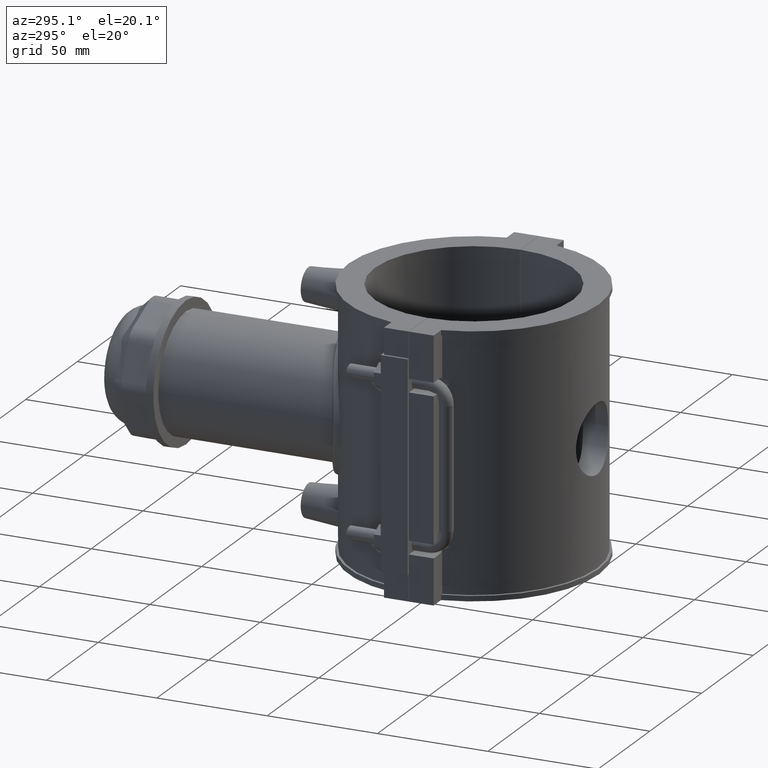
[diagram: clean part render]
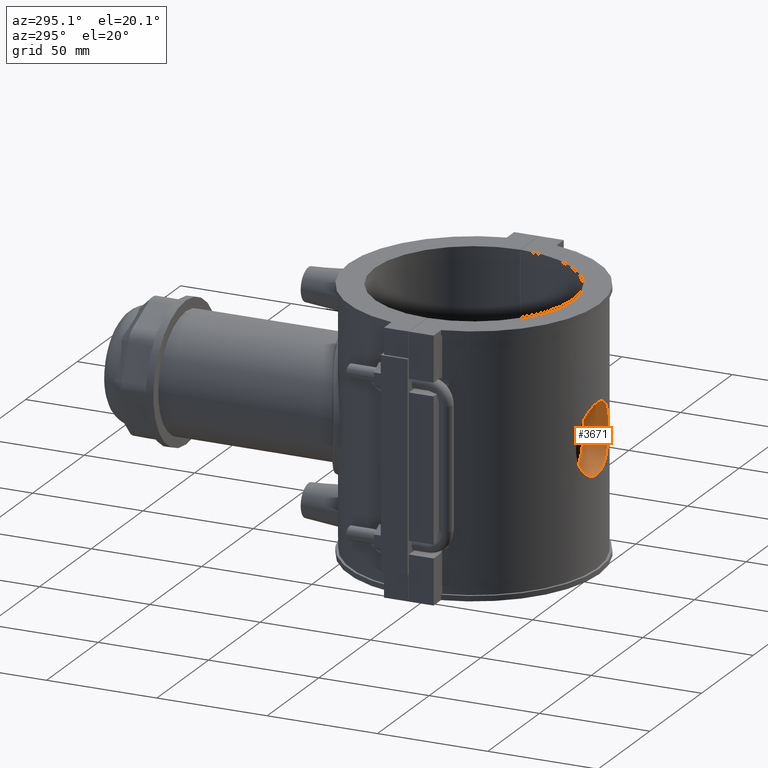
[diagram: same view with one face highlighted and labeled with its STEP entity id]
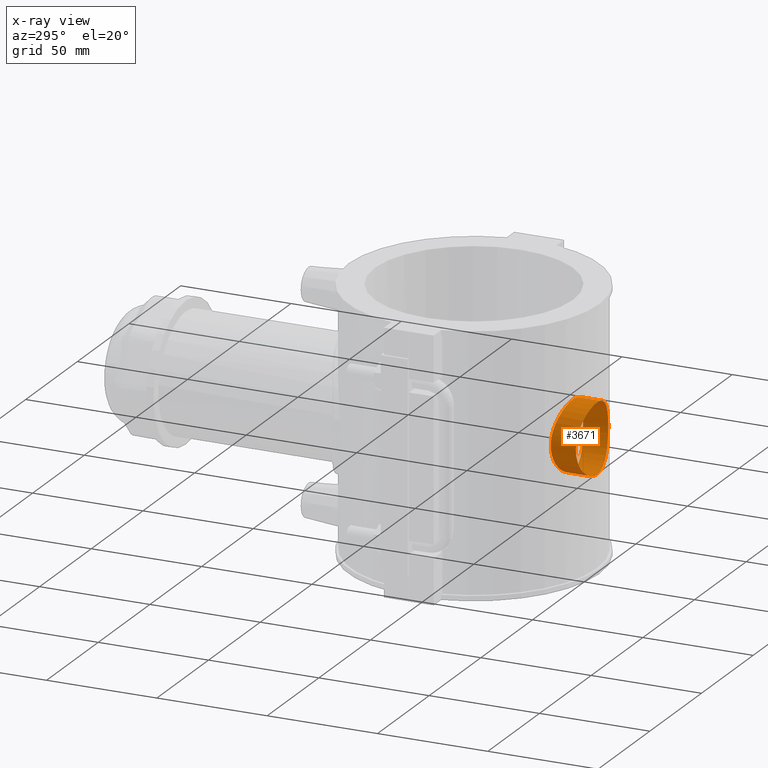
[diagram: x-ray of the same camera — body ghosted, the highlighted face saturated]
A machine part, auxiliary view. The second image highlights one B-rep face of the part: STEP entity #3671.
The next image is the same camera in x-ray: the body ghosted, the highlighted face saturated — about 0% of this face is hidden behind the body in this view.
In plain terms, the highlighted cylindrical surface (bore or boss wall) has radius 15.68 mm, axis along (0, -1, 0).
Its self-contained STEP definition (entity closure, byte-faithful):
#916=FACE_BOUND('',#1261,.T.);
#1026=FACE_OUTER_BOUND('',#1260,.T.);
#1260=EDGE_LOOP('',(#2760));
#1261=EDGE_LOOP('',(#2761));
#1508=B_SPLINE_CURVE_WITH_KNOTS('',3,(#6148,#6149,#6150,#6151,#6152,#6153,
#6154,#6155,#6156,#6157,#6158,#6159,#6160,#6161,#6162,#6163,#6164,#6165,
#6166,#6167,#6168,#6169,#6170,#6171,#6172,#6173,#6174,#6175,#6176,#6177,
#6178,#6179,#6180,#6181,#6182,#6183,#6184,#6185,#6186,#6187,#6188,#6189,
#6190,#6191,#6192,#6193,#6194,#6195,#6196,#6197,#6198,#6199,#6200,#6201,
#6202,#6203,#6204,#6205,#6206,#6207,#6208,#6209,#6210,#6211,#6212,#6213),
 .UNSPECIFIED.,.T.,.F.,(4,2,2,2,2,2,2,2,2,2,2,2,2,2,2,2,2,2,2,2,2,2,2,2,
2,2,2,2,2,2,2,2,4),(0.,0.29708920166332,0.59417840332664,0.891267604989959,
1.18835680665328,1.48537862297047,1.78240043928765,2.07942225560484,2.37644407192203,
2.67346588823921,2.9704877045564,3.26750952087359,3.56453133719078,3.8616205388541,
4.15870974051742,4.45579894218074,4.75288814384406,5.04997734550737,5.34706654717069,
5.64415574883401,5.94124495049733,6.23826676681452,6.53528858313171,6.8323103994489,
7.12933221576608,7.42635403208327,7.72337584840046,8.02039766471764,8.31741948103483,
8.61450868269815,8.91159788436147,9.20868708602479,9.50577628768811),
 .UNSPECIFIED.);
#1509=B_SPLINE_CURVE_WITH_KNOTS('',3,(#6215,#6216,#6217,#6218,#6219,#6220,
#6221,#6222,#6223,#6224,#6225,#6226,#6227,#6228,#6229,#6230,#6231,#6232,
#6233,#6234,#6235,#6236,#6237,#6238,#6239,#6240,#6241,#6242,#6243,#6244,
#6245,#6246,#6247,#6248,#6249,#6250,#6251,#6252,#6253,#6254,#6255,#6256,
#6257,#6258,#6259,#6260,#6261,#6262,#6263,#6264,#6265,#6266,#6267,#6268,
#6269,#6270,#6271,#6272),.UNSPECIFIED.,.T.,.F.,(4,2,2,2,2,2,2,2,2,2,2,2,
2,2,2,2,2,2,2,2,2,2,2,2,2,2,2,2,4),(0.,0.298130774437552,0.596261548875103,
1.19252309775021,1.49048702667013,1.78845095559006,2.08641488450998,2.38437881342991,
2.68234274234983,2.98030667126975,3.27827060018968,3.5762345291096,4.17249607798471,
4.47062685242226,4.76875762685981,5.06688840129736,5.36501917573491,5.96128072461002,
6.25924465352994,6.55720858244987,6.85517251136979,7.15313644028972,7.45110036920964,
7.74906429812957,8.04702822704949,8.34499215596941,8.94125370484452,9.23938447928207,
9.53751525371962),.UNSPECIFIED.);
#1665=VERTEX_POINT('',#6147);
#1666=VERTEX_POINT('',#6214);
#2076=EDGE_CURVE('',#1665,#1665,#1508,.T.);
#2077=EDGE_CURVE('',#1666,#1666,#1509,.T.);
#2760=ORIENTED_EDGE('',*,*,#2076,.F.);
#2761=ORIENTED_EDGE('',*,*,#2077,.F.);
#3562=CYLINDRICAL_SURFACE('',#3920,15.68);
#3671=ADVANCED_FACE('',(#1026,#916),#3562,.F.);
#3920=AXIS2_PLACEMENT_3D('',#6146,#4404,#4405);
#4404=DIRECTION('center_axis',(0.,-1.,0.));
#4405=DIRECTION('ref_axis',(1.,0.,0.));
#6146=CARTESIAN_POINT('Origin',(0.,0.,0.));
#6147=CARTESIAN_POINT('',(15.68,-53.551634895678,-2.77555756156289E-16));
#6148=CARTESIAN_POINT('Ctrl Pts',(15.68,-53.551634895678,-2.77555756156289E-16));
#6149=CARTESIAN_POINT('Ctrl Pts',(15.68,-53.551634895678,-0.990297338877733));
#6150=CARTESIAN_POINT('Ctrl Pts',(15.5846725236992,-53.5798577984178,-2.01258839316844));
#6151=CARTESIAN_POINT('Ctrl Pts',(15.1851883883389,-53.6944432221613,-4.04259611713587));
#6152=CARTESIAN_POINT('Ctrl Pts',(14.8811374861866,-53.7807031669434,-5.05033938589512));
#6153=CARTESIAN_POINT('Ctrl Pts',(14.0794434110147,-53.9961252986264,-6.98021979049833));
#6154=CARTESIAN_POINT('Ctrl Pts',(13.5811636828078,-54.125236596358,-7.90399606845588));
#6155=CARTESIAN_POINT('Ctrl Pts',(12.4317835249344,-54.4007353069943,-9.61103112442105));
#6156=CARTESIAN_POINT('Ctrl Pts',(11.7805935513097,-54.5468407397785,-10.3942751067004));
#6157=CARTESIAN_POINT('Ctrl Pts',(10.3944323280799,-54.8278740131027,-11.7804363299302));
#6158=CARTESIAN_POINT('Ctrl Pts',(9.61126207996417,-54.9728166452418,-12.4316080844248));
#6159=CARTESIAN_POINT('Ctrl Pts',(7.90418302518043,-55.2441021230157,-13.5810577299177));
#6160=CARTESIAN_POINT('Ctrl Pts',(6.98028905731638,-55.3701891682183,-14.0794180149934));
#6161=CARTESIAN_POINT('Ctrl Pts',(5.05017642792394,-55.5794746447399,-14.8812018024145));
#6162=CARTESIAN_POINT('Ctrl Pts',(4.04232221245573,-55.6626709556743,-15.185262155919));
#6163=CARTESIAN_POINT('Ctrl Pts',(2.01228241325287,-55.7729685984035,-15.5847128656235));
#6164=CARTESIAN_POINT('Ctrl Pts',(0.990072721057291,-55.8,-15.68));
#6165=CARTESIAN_POINT('Ctrl Pts',(-0.99007272105729,-55.8,-15.68));
#6166=CARTESIAN_POINT('Ctrl Pts',(-2.01228241325287,-55.7729685984035,-15.5847128656235));
#6167=CARTESIAN_POINT('Ctrl Pts',(-4.04232221245573,-55.6626709556743,-15.185262155919));
#6168=CARTESIAN_POINT('Ctrl Pts',(-5.05017642792394,-55.5794746447399,-14.8812018024145));
#6169=CARTESIAN_POINT('Ctrl Pts',(-6.98028905731637,-55.3701891682183,-14.0794180149934));
#6170=CARTESIAN_POINT('Ctrl Pts',(-7.90418302518042,-55.2441021230157,-13.5810577299177));
#6171=CARTESIAN_POINT('Ctrl Pts',(-9.61126207996417,-54.9728166452418,-12.4316080844248));
#6172=CARTESIAN_POINT('Ctrl Pts',(-10.3944323280799,-54.8278740131027,-11.7804363299302));
#6173=CARTESIAN_POINT('Ctrl Pts',(-11.7805935513097,-54.5468407397785,-10.3942751067004));
#6174=CARTESIAN_POINT('Ctrl Pts',(-12.4317835249344,-54.4007353069943,-9.61103112442105));
#6175=CARTESIAN_POINT('Ctrl Pts',(-13.5811636828078,-54.125236596358,-7.90399606845588));
#6176=CARTESIAN_POINT('Ctrl Pts',(-14.0794434110147,-53.9961252986264,-6.98021979049833));
#6177=CARTESIAN_POINT('Ctrl Pts',(-14.8811374861866,-53.7807031669434,-5.05033938589512));
#6178=CARTESIAN_POINT('Ctrl Pts',(-15.1851883883389,-53.6944432221613,-4.04259611713587));
#6179=CARTESIAN_POINT('Ctrl Pts',(-15.5846725236992,-53.5798577984178,-2.01258839316843));
#6180=CARTESIAN_POINT('Ctrl Pts',(-15.68,-53.551634895678,-0.990297338877732));
#6181=CARTESIAN_POINT('Ctrl Pts',(-15.68,-53.551634895678,0.990297338877732));
#6182=CARTESIAN_POINT('Ctrl Pts',(-15.5846725236992,-53.5798577984178,2.01258839316844));
#6183=CARTESIAN_POINT('Ctrl Pts',(-15.1851883883389,-53.6944432221613,4.04259611713587));
#6184=CARTESIAN_POINT('Ctrl Pts',(-14.8811374861866,-53.7807031669434,5.05033938589512));
#6185=CARTESIAN_POINT('Ctrl Pts',(-14.0794434110147,-53.9961252986264,6.98021979049833));
#6186=CARTESIAN_POINT('Ctrl Pts',(-13.5811636828078,-54.125236596358,7.90399606845588));
#6187=CARTESIAN_POINT('Ctrl Pts',(-12.4317835249344,-54.4007353069943,9.61103112442105));
#6188=CARTESIAN_POINT('Ctrl Pts',(-11.7805935513097,-54.5468407397785,10.3942751067004));
#6189=CARTESIAN_POINT('Ctrl Pts',(-10.3944323280799,-54.8278740131027,11.7804363299302));
#6190=CARTESIAN_POINT('Ctrl Pts',(-9.61126207996417,-54.9728166452418,12.4316080844248));
#6191=CARTESIAN_POINT('Ctrl Pts',(-7.90418302518043,-55.2441021230157,13.5810577299177));
#6192=CARTESIAN_POINT('Ctrl Pts',(-6.98028905731638,-55.3701891682183,14.0794180149934));
#6193=CARTESIAN_POINT('Ctrl Pts',(-5.05017642792394,-55.5794746447399,14.8812018024145));
#6194=CARTESIAN_POINT('Ctrl Pts',(-4.04232221245574,-55.6626709556743,15.185262155919));
#6195=CARTESIAN_POINT('Ctrl Pts',(-2.01228241325287,-55.7729685984035,15.5847128656235));
#6196=CARTESIAN_POINT('Ctrl Pts',(-0.990072721057294,-55.8,15.68));
#6197=CARTESIAN_POINT('Ctrl Pts',(0.990072721057288,-55.8,15.68));
#6198=CARTESIAN_POINT('Ctrl Pts',(2.01228241325287,-55.7729685984035,15.5847128656235));
#6199=CARTESIAN_POINT('Ctrl Pts',(4.04232221245573,-55.6626709556743,15.185262155919));
#6200=CARTESIAN_POINT('Ctrl Pts',(5.05017642792394,-55.5794746447399,14.8812018024145));
#6201=CARTESIAN_POINT('Ctrl Pts',(6.98028905731637,-55.3701891682183,14.0794180149935));
#6202=CARTESIAN_POINT('Ctrl Pts',(7.90418302518042,-55.2441021230157,13.5810577299177));
#6203=CARTESIAN_POINT('Ctrl Pts',(9.61126207996417,-54.9728166452418,12.4316080844248));
#6204=CARTESIAN_POINT('Ctrl Pts',(10.3944323280799,-54.8278740131027,11.7804363299302));
#6205=CARTESIAN_POINT('Ctrl Pts',(11.7805935513097,-54.5468407397785,10.3942751067004));
#6206=CARTESIAN_POINT('Ctrl Pts',(12.4317835249344,-54.4007353069943,9.61103112442105));
#6207=CARTESIAN_POINT('Ctrl Pts',(13.5811636828078,-54.125236596358,7.90399606845589));
#6208=CARTESIAN_POINT('Ctrl Pts',(14.0794434110147,-53.9961252986264,6.98021979049834));
#6209=CARTESIAN_POINT('Ctrl Pts',(14.8811374861866,-53.7807031669434,5.05033938589513));
#6210=CARTESIAN_POINT('Ctrl Pts',(15.1851883883389,-53.6944432221613,4.04259611713588));
#6211=CARTESIAN_POINT('Ctrl Pts',(15.5846725236992,-53.5798577984178,2.01258839316844));
#6212=CARTESIAN_POINT('Ctrl Pts',(15.68,-53.551634895678,0.990297338877735));
#6213=CARTESIAN_POINT('Ctrl Pts',(15.68,-53.551634895678,0.));
#6214=CARTESIAN_POINT('',(15.68,-42.1798245610387,2.77555756156289E-16));
#6215=CARTESIAN_POINT('Ctrl Pts',(15.68,-42.1798245610387,2.77555756156289E-16));
#6216=CARTESIAN_POINT('Ctrl Pts',(15.68,-42.1798245610387,0.993769248125173));
#6217=CARTESIAN_POINT('Ctrl Pts',(15.5840062611448,-42.2159243813651,2.01849568046661));
#6218=CARTESIAN_POINT('Ctrl Pts',(15.1829951016987,-42.3618009790322,4.05120176988392));
#6219=CARTESIAN_POINT('Ctrl Pts',(14.8780965708993,-42.4714239376622,5.05921591543679));
#6220=CARTESIAN_POINT('Ctrl Pts',(13.6743092749295,-42.8804342755879,7.95234733967828));
#6221=CARTESIAN_POINT('Ctrl Pts',(12.4706643468803,-43.2610623394661,9.70420431112979));
#6222=CARTESIAN_POINT('Ctrl Pts',(10.3962063745887,-43.7884410454044,11.7786622834215));
#6223=CARTESIAN_POINT('Ctrl Pts',(9.61490003473461,-43.9694011229695,12.428665076078));
#6224=CARTESIAN_POINT('Ctrl Pts',(7.91087463584725,-44.307703622236,13.5770424166243));
#6225=CARTESIAN_POINT('Ctrl Pts',(6.98815325823131,-44.4647418327408,14.075503120421));
#6226=CARTESIAN_POINT('Ctrl Pts',(5.05882727978244,-44.7253375478535,14.8782506934927));
#6227=CARTESIAN_POINT('Ctrl Pts',(4.05053588295858,-44.8289074026202,15.183175141873));
#6228=CARTESIAN_POINT('Ctrl Pts',(2.01774280473302,-44.9662817433942,15.5841060797187));
#6229=CARTESIAN_POINT('Ctrl Pts',(0.99321309639975,-45.,15.68));
#6230=CARTESIAN_POINT('Ctrl Pts',(-0.993213096399747,-45.,15.68));
#6231=CARTESIAN_POINT('Ctrl Pts',(-2.01774280473302,-44.9662817433942,15.5841060797187));
#6232=CARTESIAN_POINT('Ctrl Pts',(-4.05053588295858,-44.8289074026202,15.183175141873));
#6233=CARTESIAN_POINT('Ctrl Pts',(-5.05882727978244,-44.7253375478535,14.8782506934927));
#6234=CARTESIAN_POINT('Ctrl Pts',(-6.9881532582313,-44.4647418327408,14.075503120421));
#6235=CARTESIAN_POINT('Ctrl Pts',(-7.91087463584725,-44.307703622236,13.5770424166243));
#6236=CARTESIAN_POINT('Ctrl Pts',(-9.61490003473461,-43.9694011229695,12.428665076078));
#6237=CARTESIAN_POINT('Ctrl Pts',(-10.3962063745887,-43.7884410454044,11.7786622834215));
#6238=CARTESIAN_POINT('Ctrl Pts',(-12.4706643468803,-43.2610623394661,9.7042043111298));
#6239=CARTESIAN_POINT('Ctrl Pts',(-13.6743092749295,-42.8804342755878,7.95234733967828));
#6240=CARTESIAN_POINT('Ctrl Pts',(-14.8780965708993,-42.4714239376622,5.05921591543679));
#6241=CARTESIAN_POINT('Ctrl Pts',(-15.1829951016987,-42.3618009790322,4.05120176988392));
#6242=CARTESIAN_POINT('Ctrl Pts',(-15.5840062611448,-42.2159243813651,2.01849568046661));
#6243=CARTESIAN_POINT('Ctrl Pts',(-15.68,-42.1798245610387,0.993769248125173));
#6244=CARTESIAN_POINT('Ctrl Pts',(-15.68,-42.1798245610387,-0.993769248125173));
#6245=CARTESIAN_POINT('Ctrl Pts',(-15.5840062611448,-42.2159243813651,-2.01849568046661));
#6246=CARTESIAN_POINT('Ctrl Pts',(-15.1829951016987,-42.3618009790322,-4.05120176988392));
#6247=CARTESIAN_POINT('Ctrl Pts',(-14.8780965708993,-42.4714239376622,-5.05921591543679));
#6248=CARTESIAN_POINT('Ctrl Pts',(-13.6743092749295,-42.8804342755878,-7.95234733967828));
#6249=CARTESIAN_POINT('Ctrl Pts',(-12.4706643468803,-43.2610623394661,-9.70420431112979));
#6250=CARTESIAN_POINT('Ctrl Pts',(-10.3962063745887,-43.7884410454044,-11.7786622834215));
#6251=CARTESIAN_POINT('Ctrl Pts',(-9.61490003473461,-43.9694011229695,-12.428665076078));
#6252=CARTESIAN_POINT('Ctrl Pts',(-7.91087463584725,-44.307703622236,-13.5770424166243));
#6253=CARTESIAN_POINT('Ctrl Pts',(-6.9881532582313,-44.4647418327408,-14.075503120421));
#6254=CARTESIAN_POINT('Ctrl Pts',(-5.05882727978244,-44.7253375478535,-14.8782506934927));
#6255=CARTESIAN_POINT('Ctrl Pts',(-4.05053588295858,-44.8289074026202,-15.183175141873));
#6256=CARTESIAN_POINT('Ctrl Pts',(-2.01774280473303,-44.9662817433942,-15.5841060797187));
#6257=CARTESIAN_POINT('Ctrl Pts',(-0.993213096399753,-45.,-15.68));
#6258=CARTESIAN_POINT('Ctrl Pts',(0.993213096399747,-45.,-15.68));
#6259=CARTESIAN_POINT('Ctrl Pts',(2.01774280473302,-44.9662817433942,-15.5841060797187));
#6260=CARTESIAN_POINT('Ctrl Pts',(4.05053588295858,-44.8289074026202,-15.183175141873));
#6261=CARTESIAN_POINT('Ctrl Pts',(5.05882727978244,-44.7253375478535,-14.8782506934927));
#6262=CARTESIAN_POINT('Ctrl Pts',(6.9881532582313,-44.4647418327408,-14.075503120421));
#6263=CARTESIAN_POINT('Ctrl Pts',(7.91087463584724,-44.307703622236,-13.5770424166243));
#6264=CARTESIAN_POINT('Ctrl Pts',(9.6149000347346,-43.9694011229695,-12.428665076078));
#6265=CARTESIAN_POINT('Ctrl Pts',(10.3962063745887,-43.7884410454044,-11.7786622834215));
#6266=CARTESIAN_POINT('Ctrl Pts',(12.4706643468803,-43.2610623394661,-9.7042043111298));
#6267=CARTESIAN_POINT('Ctrl Pts',(13.6743092749295,-42.8804342755879,-7.95234733967828));
#6268=CARTESIAN_POINT('Ctrl Pts',(14.8780965708993,-42.4714239376622,-5.0592159154368));
#6269=CARTESIAN_POINT('Ctrl Pts',(15.1829951016986,-42.3618009790322,-4.05120176988393));
#6270=CARTESIAN_POINT('Ctrl Pts',(15.5840062611448,-42.2159243813651,-2.01849568046661));
#6271=CARTESIAN_POINT('Ctrl Pts',(15.68,-42.1798245610387,-0.993769248125175));
#6272=CARTESIAN_POINT('Ctrl Pts',(15.68,-42.1798245610387,2.77555756156289E-16));